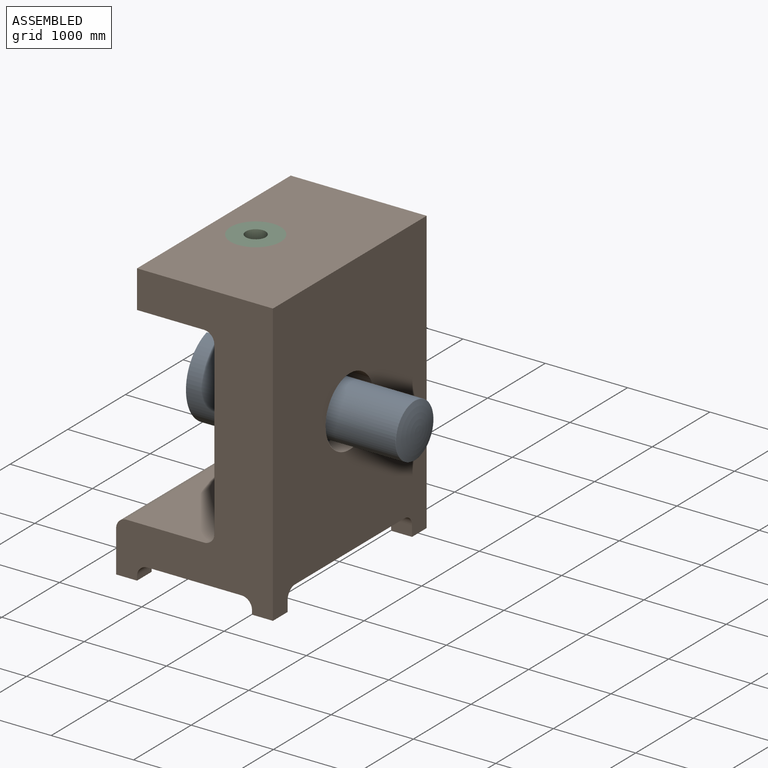
[diagram: assembled view]
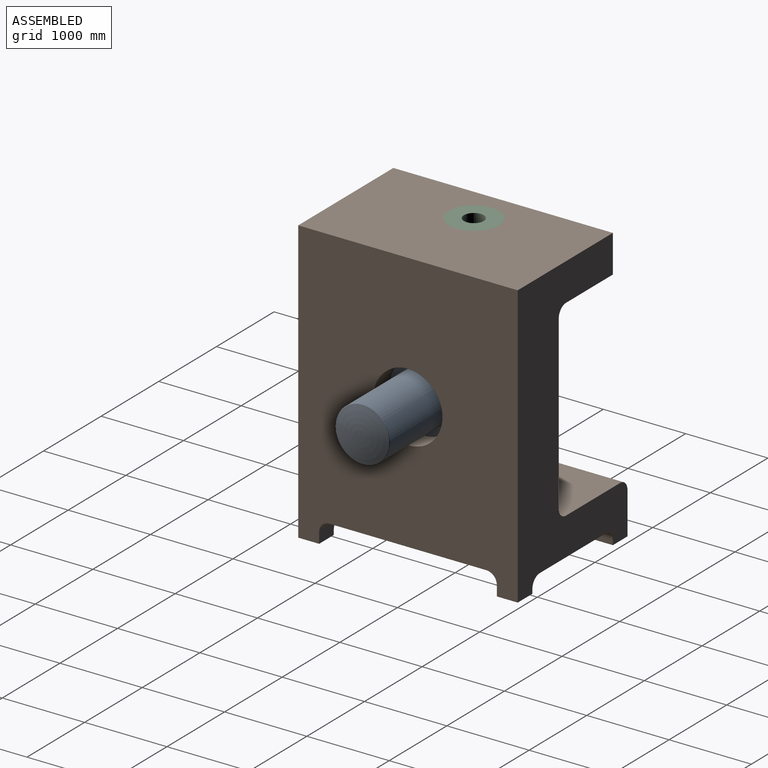
[diagram: assembled view, second angle]
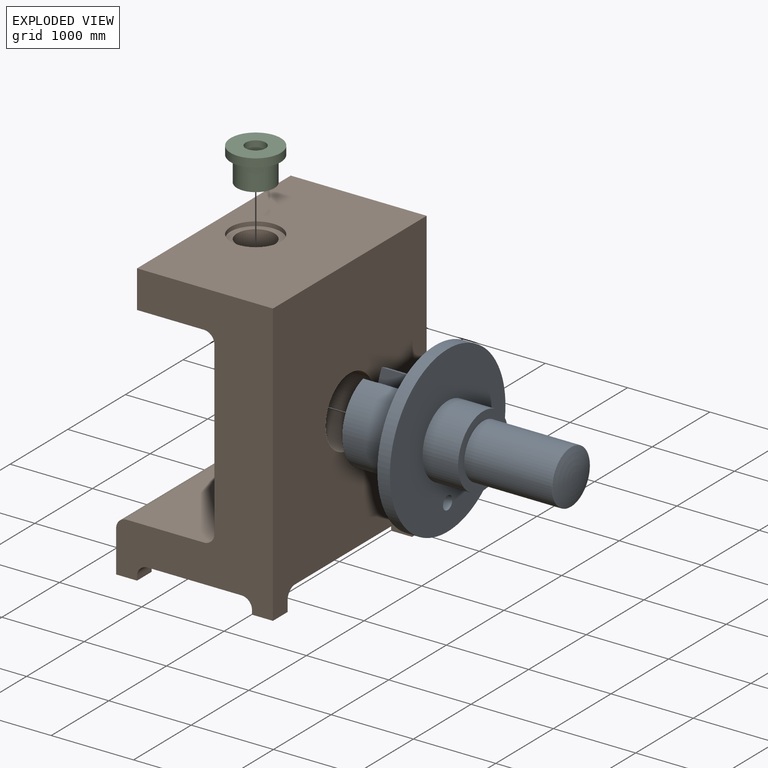
[diagram: exploded view]
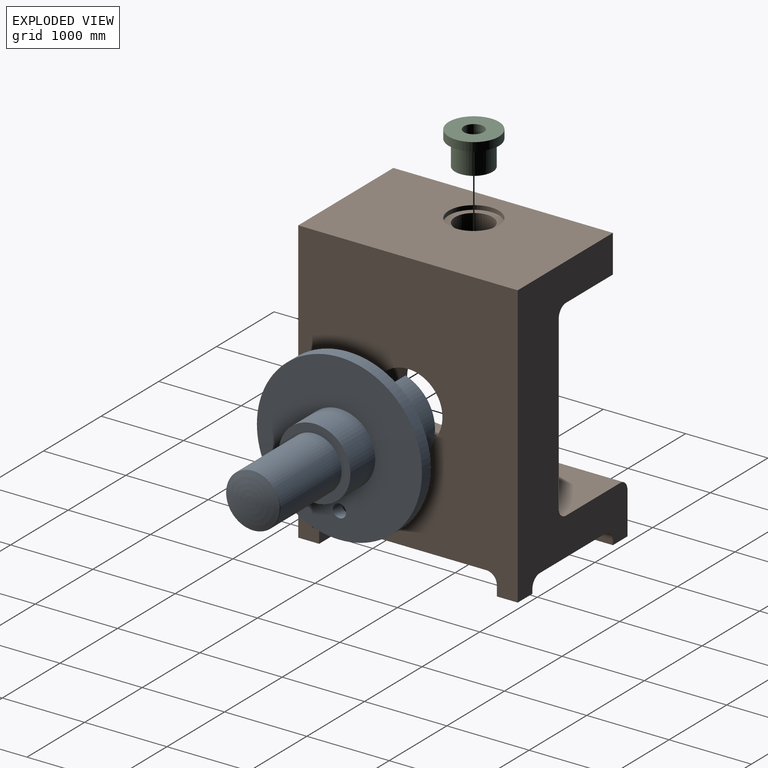
[diagram: exploded view, second angle]
ASSEMBLY  parts=3 mates=3
PART A: 15 faces, bbox 2560.7x2004.8x2004.8 mm
  f0: torus R=22.71mm, axis (1,0,0), area 807833.6mm2, adj f1,f9,f10,f11
  f1: cylinder r=521.12mm len=1042.24mm, axis (1,0,0), area 2353432.8mm2, adj f0,f2,f10,f11,f12
  f2: plane 2004.76x2004.76mm, normal (-1,0,0), area 2283000mm2, adj f1,f3,f13
  f3: cylinder r=1002.38mm len=2004.76mm, axis (1,0,0), area 959838.6mm2, adj f2,f4
  f4: plane 2004.76x2004.76mm, normal (1,0,0), area 2540144.4mm2, adj f3,f5,f13
  f5: cylinder r=435.56mm len=871.12mm, axis (1,0,0), area 1181712.2mm2, adj f4,f6
  f6: plane 871.12x871.12mm, normal (1,0,0), area 256430.3mm2, adj f5,f7
  f7: cylinder r=328.77mm len=1063.02mm, axis (1,0,0), area 2195899.7mm2, adj f6,f14
  f8: sphere r=1138.51mm, area 339179.8mm2, adj f14
  f9: plane 481.75x322.61mm, normal (0,0,1), area 154599.9mm2, adj f0,f10,f11,f12
  f10: plane 474.31x177.64mm, normal (0,-1,0), area 80760.7mm2, adj f0,f1,f9,f12
  f11: plane 474.31x177.64mm, normal (0,1,0), area 80760.7mm2, adj f0,f1,f9,f12
  f12: plane 322.58x203.2mm, normal (-1,0,0), area 62824.4mm2, adj f1,f9,f10,f11
  f13: cylinder r=80.64mm len=161.29mm, axis (-1,0,0), area 77222.2mm2, adj f2,f4
  f14: torus R=323.69mm, axis (-1,0,0), area 13392.2mm2, adj f7,f8
PART B: 42 faces, bbox 1905x2667x3429 mm
  f0: cone r=419.1mm half-angle=45deg, axis (-1,0,0), area 366178.8mm2, adj f2,f30
  f1: cone r=857.17mm half-angle=59deg, axis (-1,0,0), area 23836.3mm2, adj f29
  f2: cylinder r=419.1mm len=838.2mm, axis (1,0,0), area 1538363.9mm2, adj f0,f39
  f3: plane 254x254mm, normal (0,0,-1), area 64516mm2, adj f17,f26,f34,f39
  f4: plane 254x254mm, normal (0,0,-1), area 64516mm2, adj f14,f18,f20,f36
  f5: plane 254x254mm, normal (0,0,-1), area 64516mm2, adj f7,f18,f35,f39
  f6: plane 2667x1651mm, normal (0,0,1), area 4111353.5mm2, adj f12,f17,f18,f31,f39
  f7: plane 254x50.8mm, normal (-1,0,0), area 12903.2mm2, adj f5,f18,f24,f35
  f8: plane 2667x2082.8mm, normal (-1,0,0), area 2550559mm2, adj f9,f10,f17,f18,f41
  f9: cylinder r=127mm len=2667mm, axis (0,-1,0), area 532042.9mm2, adj f8,f15,f17,f18
  f10: cylinder r=127mm len=2667mm, axis (0,-1,0), area 532042.9mm2, adj f8,f11,f17,f18
  f11: plane 2667x812.8mm, normal (0,0,-1), area 2003564.4mm2, adj f10,f12,f17,f18,f32
  f12: plane 2667x457.2mm, normal (-1,0,0), area 1219352.4mm2, adj f6,f11,f17,f18
  f13: cylinder r=127mm len=2667mm, axis (0,-1,0), area 532042.9mm2, adj f14,f15,f17,f18
  f14: plane 2667x508mm, normal (-1,0,0), area 813372.6mm2, adj f4,f13,f17,f18,f19,f20,f21,f23
  f15: plane 2667x939.8mm, normal (0,0,1), area 2506446.6mm2, adj f9,f13,f17,f18
  f16: plane 1143x264.6mm, normal (0,0,-1), area 302440.7mm2, adj f17,f23,f25,f28
  f17: plane 3429x1905mm, normal (0,1,0), area 3388441.7mm2, adj f3,f6,f8,f9,f10,f11,f12,f13
  f18: plane 3429x1905mm, normal (0,-1,0), area 3388441.7mm2, adj f4,f5,f6,f7,f8,f9,f10,f11
  f19: plane 279.4x127mm, normal (0,-1,0), area 32874.9mm2, adj f14,f23,f28,f37,f38
  f20: plane 279.4x127mm, normal (0,1,0), area 32874.9mm2, adj f4,f14,f21,f22,f36
  f21: cylinder r=127mm len=1905mm, axis (1,0,0), area 312935.2mm2, adj f14,f20,f22,f24,f27,f35,f39,f40
  f22: cylinder r=127mm len=264.6mm, axis (0,-1,0), area 51315.9mm2, adj f18,f20,f21,f27,f36
  f23: cylinder r=127mm len=1905mm, axis (1,0,0), area 312935.4mm2, adj f14,f16,f19,f25,f28,f34,f39,f40
  f24: cylinder r=127mm len=264.6mm, axis (0,-1,0), area 51315.9mm2, adj f7,f18,f21,f27,f35
  f25: cylinder r=127mm len=264.6mm, axis (0,-1,0), area 51315.9mm2, adj f16,f17,f23,f26,f34
  f26: plane 254x50.8mm, normal (-1,0,0), area 12903.2mm2, adj f3,f17,f25,f34
  f27: plane 1143x264.6mm, normal (0,0,-1), area 302440.7mm2, adj f18,f21,f22,f24
  f28: cylinder r=127mm len=264.6mm, axis (0,-1,0), area 51315.9mm2, adj f16,f17,f19,f23,f38
  f29: cylinder r=80.64mm len=254mm, axis (1,0,0), area 128703.7mm2, adj f1,f30
  f30: plane 1955.8x1955.8mm, normal (-1,0,0), area 2173105mm2, adj f0,f29,f41
  f31: cylinder r=304.8mm len=609.6mm, axis (0,0,-1), area 97287.8mm2, adj f6,f33
  f32: cylinder r=228.6mm len=457.2mm, axis (0,0,-1), area 583727mm2, adj f11,f33
  f33: plane 609.6x609.6mm, normal (0,0,1), area 127690.3mm2, adj f31,f32
  f34: plane 279.4x127mm, normal (0,-1,0), area 32874.9mm2, adj f3,f23,f25,f26,f39
  f35: plane 279.4x127mm, normal (0,1,0), area 32874.9mm2, adj f5,f7,f21,f24,f39
  f36: plane 254x50.8mm, normal (1,0,0), area 12903.2mm2, adj f4,f18,f20,f22
  f37: plane 254x254mm, normal (0,0,-1), area 64516mm2, adj f14,f17,f19,f38
  f38: plane 254x50.8mm, normal (1,0,0), area 12903.2mm2, adj f17,f19,f28,f37
  f39: plane 3429x2667mm, normal (1,0,0), area 8051875.2mm2, adj f2,f3,f5,f6,f17,f18,f21,f23
  f40: plane 1905x1905mm, normal (0,0,-1), area 3629025mm2, adj f14,f21,f23,f39
  f41: cylinder r=977.9mm len=1955.8mm, axis (1,0,0), area 234098.9mm2, adj f8,f30
PART C: 6 faces, bbox 609.6x609.6x406.4 mm
  f0: cylinder r=304.8mm len=609.6mm, axis (0,0,-1), area 194575.7mm2, adj f1,f2
  f1: plane 609.6x609.6mm, normal (0,0,1), area 246133.2mm2, adj f0,f5
  f2: plane 609.6x609.6mm, normal (0,0,-1), area 127690.3mm2, adj f0,f3
  f3: cylinder r=228.6mm len=457.2mm, axis (0,0,1), area 437795.3mm2, adj f2,f4
  f4: plane 457.2x457.2mm, normal (0,0,-1), area 118442.9mm2, adj f3,f5
  f5: cylinder r=120.65mm len=406.4mm, axis (0,0,1), area 308078.1mm2, adj f1,f4
PLACE A t=(4925.86,1675.64,-1051.32)mm
PLACE B t=(4425.56,3009.14,-2686.12)mm
PLACE C t=(4210.67,1675.64,478.32)mm
MATE planar C.f0 <-> B.f31  axis (0,0,1) through (4210.67,1675.64,579.92)mm
MATE planar B.f0 <-> A.f0  axis (-1,0,0) through (4642.47,1675.64,-1058.38)mm
MATE cylindrical C.f0 <-> B.f31  axis (0,0,1) through (4210.67,1675.64,579.92)mm
